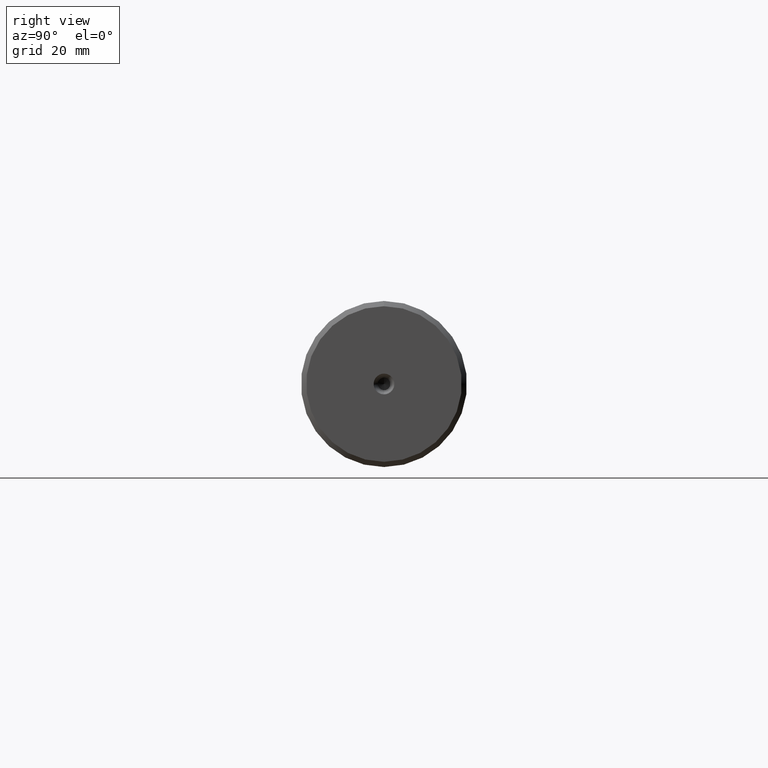
[diagram: clean part render]
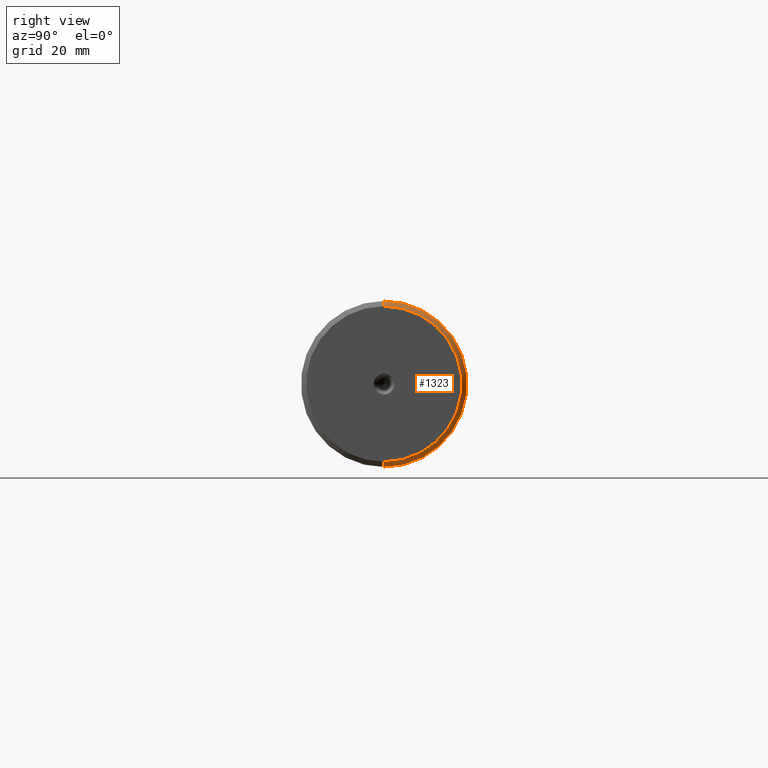
[diagram: same view with one face highlighted and labeled with its STEP entity id]
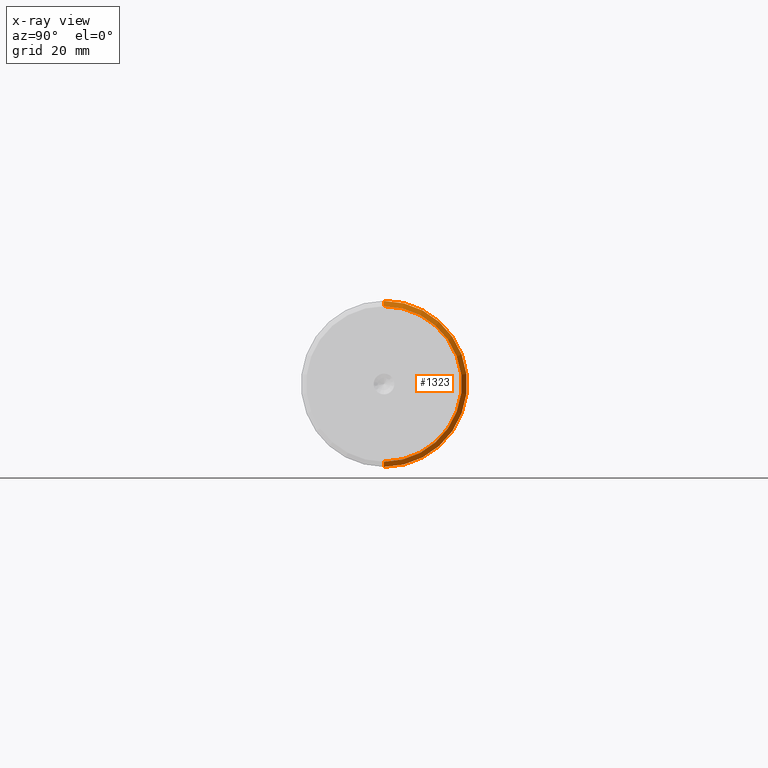
[diagram: x-ray of the same camera — body ghosted, the highlighted face saturated]
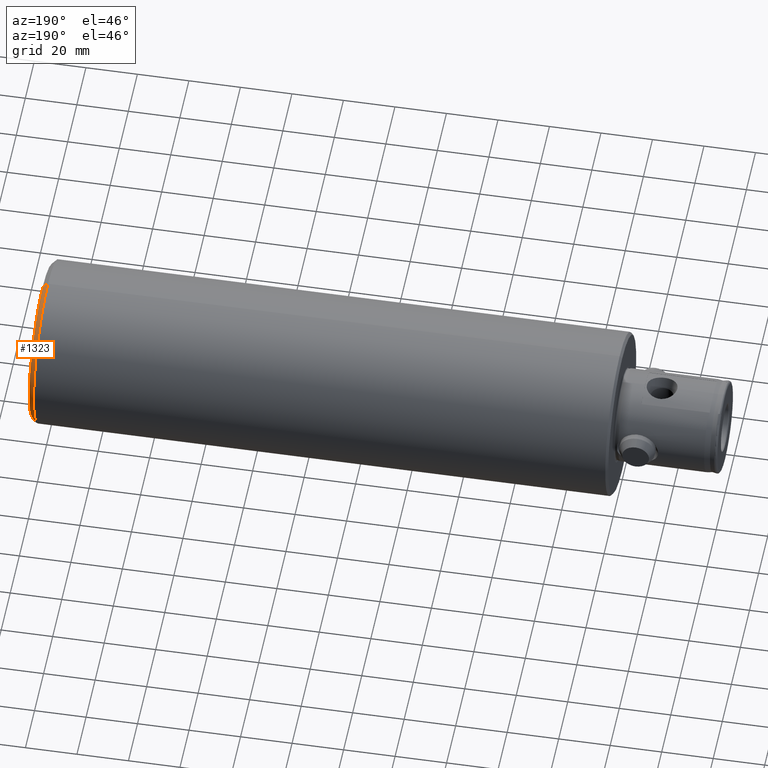
[diagram: same view with one face highlighted and labeled with its STEP entity id]
A machine part, right view. The second image highlights one B-rep face of the part: STEP entity #1323.
The next image is the same camera in x-ray: the body ghosted, the highlighted face saturated — about 0% of this face is hidden behind the body in this view.
A second angle (auxiliary view) of the same face is appended — the face is thin or edge-on in the first view.
In plain terms, the highlighted conical surface has half-angle 45 deg.
Its self-contained STEP definition (entity closure, byte-faithful):
#71 = EDGE_LOOP ( 'NONE', ( #2545, #2546, #2547, #2548 ) ) ;
#353 = DIRECTION ( 'NONE',  ( 0.0000000000000000000, 0.0000000000000000000, 1.000000000000000000 ) ) ;
#354 = CARTESIAN_POINT ( 'NONE',  ( 263.0000000000000000, 0.0000000000000000000, 0.0000000000000000000 ) ) ;
#355 = DIRECTION ( 'NONE',  ( -1.000000000000000000, -0.0000000000000000000, -0.0000000000000000000 ) ) ;
#1323 = ADVANCED_FACE ( 'NONE', ( #3074 ), #3079, .T. ) ;
#1419 = CARTESIAN_POINT ( 'NONE',  ( 265.0000000000000000, 0.0000000000000000000, 29.75000000000000000 ) ) ;
#1435 = CARTESIAN_POINT ( 'NONE',  ( 265.0000000000000000, 3.765788907378110500E-015, -29.75000000000000000 ) ) ;
#1438 = CARTESIAN_POINT ( 'NONE',  ( 263.0000000000000000, 0.0000000000000000000, 31.75000000000000000 ) ) ;
#1439 = CARTESIAN_POINT ( 'NONE',  ( 263.0000000000000000, 3.888253587292846500E-015, -31.75000000000000000 ) ) ;
#1568 = CARTESIAN_POINT ( 'NONE',  ( 263.0000000000000000, 0.0000000000000000000, 31.75000000000000000 ) ) ;
#1577 = DIRECTION ( 'NONE',  ( -0.7071067811865474600, 0.0000000000000000000, 0.7071067811865474600 ) ) ;
#1615 = CARTESIAN_POINT ( 'NONE',  ( 263.0000000000000000, 3.888253587292846500E-015, -31.75000000000000000 ) ) ;
#1616 = DIRECTION ( 'NONE',  ( -0.7071067811865474600, 8.659560562354932900E-017, -0.7071067811865474600 ) ) ;
#1617 = CARTESIAN_POINT ( 'NONE',  ( 265.0000000000000000, 0.0000000000000000000, 0.0000000000000000000 ) ) ;
#1618 = DIRECTION ( 'NONE',  ( 1.000000000000000000, 0.0000000000000000000, 0.0000000000000000000 ) ) ;
#1619 = DIRECTION ( 'NONE',  ( 0.0000000000000000000, 0.0000000000000000000, 1.000000000000000000 ) ) ;
#1621 = CARTESIAN_POINT ( 'NONE',  ( 263.0000000000000000, 0.0000000000000000000, 0.0000000000000000000 ) ) ;
#1622 = DIRECTION ( 'NONE',  ( -1.000000000000000000, -0.0000000000000000000, -0.0000000000000000000 ) ) ;
#1623 = DIRECTION ( 'NONE',  ( 0.0000000000000000000, 0.0000000000000000000, 1.000000000000000000 ) ) ;
#2369 = LINE ( 'NONE', #1568, #2384 ) ;
#2383 = CIRCLE ( 'NONE', #2939, 29.75000000000000000 ) ;
#2384 = VECTOR ( 'NONE', #1577, 1000.000000000000100 ) ;
#2387 = CIRCLE ( 'NONE', #2940, 31.75000000000000000 ) ;
#2388 = LINE ( 'NONE', #1615, #2390 ) ;
#2390 = VECTOR ( 'NONE', #1616, 1000.000000000000100 ) ;
#2545 = ORIENTED_EDGE ( 'NONE', *, *, #2736, .F. ) ;
#2546 = ORIENTED_EDGE ( 'NONE', *, *, #2738, .T. ) ;
#2547 = ORIENTED_EDGE ( 'NONE', *, *, #2737, .F. ) ;
#2548 = ORIENTED_EDGE ( 'NONE', *, *, #2733, .F. ) ;
#2556 = VERTEX_POINT ( 'NONE', #1419 ) ;
#2575 = VERTEX_POINT ( 'NONE', #1435 ) ;
#2578 = VERTEX_POINT ( 'NONE', #1438 ) ;
#2579 = VERTEX_POINT ( 'NONE', #1439 ) ;
#2733 = EDGE_CURVE ( 'NONE', #2556, #2578, #2369, .T. ) ;
#2736 = EDGE_CURVE ( 'NONE', #2575, #2556, #2383, .T. ) ;
#2737 = EDGE_CURVE ( 'NONE', #2578, #2579, #2387, .T. ) ;
#2738 = EDGE_CURVE ( 'NONE', #2575, #2579, #2388, .T. ) ;
#2824 = AXIS2_PLACEMENT_3D ( 'NONE', #354, #355, #353 ) ;
#2939 = AXIS2_PLACEMENT_3D ( 'NONE', #1617, #1618, #1619 ) ;
#2940 = AXIS2_PLACEMENT_3D ( 'NONE', #1621, #1622, #1623 ) ;
#3074 = FACE_OUTER_BOUND ( 'NONE', #71, .T. ) ;
#3079 = CONICAL_SURFACE ( 'NONE', #2824, 31.75000000000000000, 0.7853981633974482800 ) ;